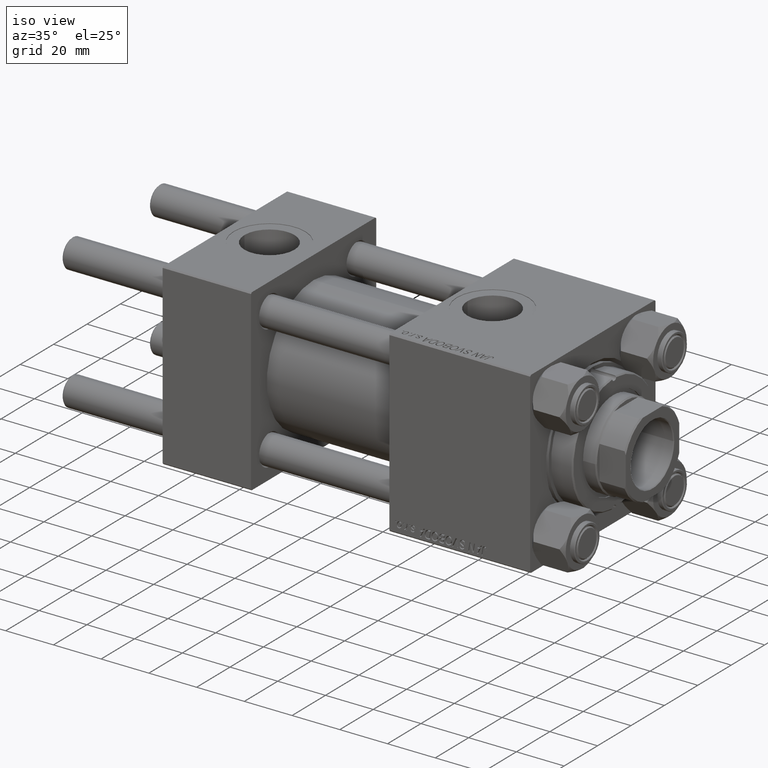
[diagram: clean part render]
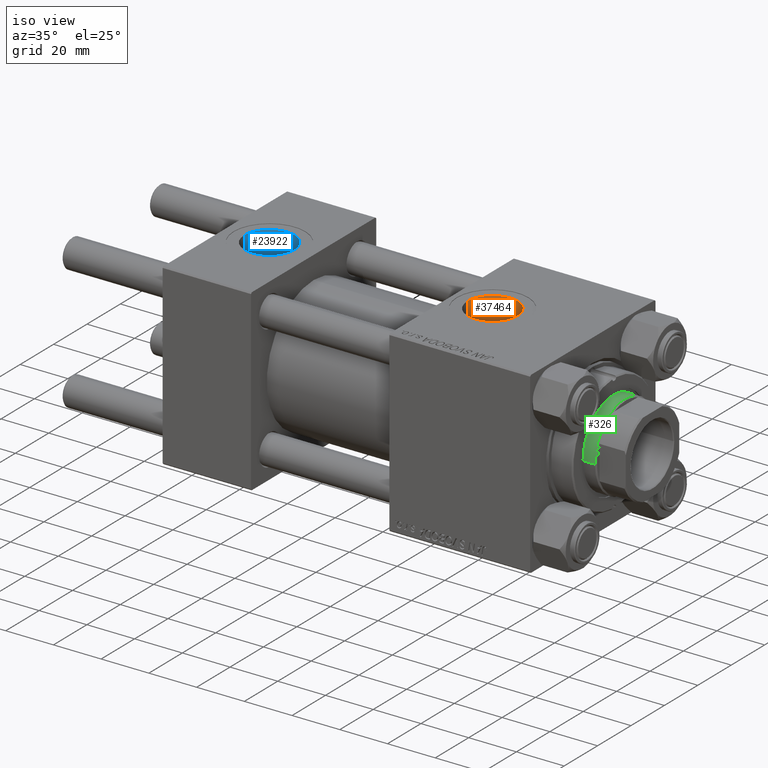
[diagram: same view with three faces highlighted in distinct colors, each labeled with its STEP entity id]
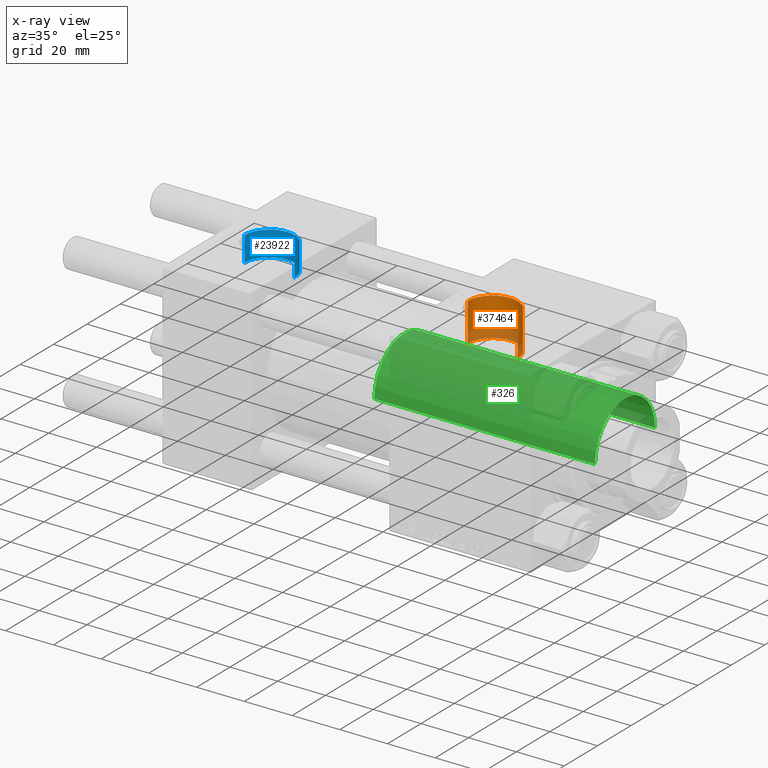
[diagram: x-ray of the same camera — body ghosted, the three highlighted faces saturated]
A machine part, iso view with three faces highlighted in distinct colors.
The next image is the same camera in x-ray (body ghosted, the three faces saturated) — at least one of them is partly hidden behind the body in this view.
Their STEP definitions:

[orange] entity #37464 — the highlighted cylindrical surface (edge-blend (fillet) strip) has radius 10.48 mm, axis along (0, 0, -1).
#133 = VECTOR ( 'NONE', #782, 1000.000000000000000 ) ;
#185 = VERTEX_POINT ( 'NONE', #36569 ) ;
#444 = FACE_OUTER_BOUND ( 'NONE', #37463, .T. ) ;
#698 = EDGE_CURVE ( 'NONE', #185, #50934, #20632, .T. ) ;
#782 = DIRECTION ( 'NONE',  ( 0.000000000000000000, 0.000000000000000000, -1.000000000000000000 ) ) ;
#967 = AXIS2_PLACEMENT_3D ( 'NONE', #4362, #27895, #32578 ) ;
#1673 = DIRECTION ( 'NONE',  ( -0.000000000000000000, -0.000000000000000000, -1.000000000000000000 ) ) ;
#2133 = ORIENTED_EDGE ( 'NONE', *, *, #698, .T. ) ;
#2871 = CARTESIAN_POINT ( 'NONE',  ( 112.0000000000000000, -6.938893903907226011E-15, 21.09999999999998010 ) ) ;
#4362 = CARTESIAN_POINT ( 'NONE',  ( 112.0000000000000000, -6.938893903907226011E-15, 60.29999999999998295 ) ) ;
#4559 = DIRECTION ( 'NONE',  ( 0.000000000000000000, 0.000000000000000000, -1.000000000000000000 ) ) ;
#4658 = AXIS2_PLACEMENT_3D ( 'NONE', #2871, #23493, #47025 ) ;
#5811 = ORIENTED_EDGE ( 'NONE', *, *, #43125, .F. ) ;
#7730 = CIRCLE ( 'NONE', #36931, 10.48000000000000398 ) ;
#12098 = VECTOR ( 'NONE', #4559, 1000.000000000000000 ) ;
#15550 = CARTESIAN_POINT ( 'NONE',  ( 101.5199999999999960, -6.938893903907226011E-15, 21.09999999999998010 ) ) ;
#15867 = CYLINDRICAL_SURFACE ( 'NONE', #967, 10.48000000000000398 ) ;
#16825 = CARTESIAN_POINT ( 'NONE',  ( 122.4800000000000040, -5.655464058400799734E-15, 60.29999999999998295 ) ) ;
#16845 = EDGE_CURVE ( 'NONE', #35791, #27568, #48197, .T. ) ;
#20632 = LINE ( 'NONE', #36573, #133 ) ;
#22828 = EDGE_CURVE ( 'NONE', #27568, #50934, #27202, .T. ) ;
#23493 = DIRECTION ( 'NONE',  ( 0.000000000000000000, 0.000000000000000000, 1.000000000000000000 ) ) ;
#27202 = CIRCLE ( 'NONE', #4658, 10.48000000000000398 ) ;
#27463 = ORIENTED_EDGE ( 'NONE', *, *, #22828, .F. ) ;
#27568 = VERTEX_POINT ( 'NONE', #28743 ) ;
#27895 = DIRECTION ( 'NONE',  ( 0.000000000000000000, 0.000000000000000000, -1.000000000000000000 ) ) ;
#28353 = DIRECTION ( 'NONE',  ( 1.000000000000000000, 0.000000000000000000, 0.000000000000000000 ) ) ;
#28743 = CARTESIAN_POINT ( 'NONE',  ( 122.4800000000000040, -5.655464058400800522E-15, 21.09999999999998010 ) ) ;
#30770 = ORIENTED_EDGE ( 'NONE', *, *, #16845, .F. ) ;
#32578 = DIRECTION ( 'NONE',  ( -1.000000000000000000, 0.000000000000000000, 0.000000000000000000 ) ) ;
#33786 = CARTESIAN_POINT ( 'NONE',  ( 122.4800000000000040, -5.655464058400800522E-15, 37.29999999999998295 ) ) ;
#35791 = VERTEX_POINT ( 'NONE', #33786 ) ;
#36569 = CARTESIAN_POINT ( 'NONE',  ( 101.5199999999999960, -6.938893903907226011E-15, 37.29999999999998295 ) ) ;
#36573 = CARTESIAN_POINT ( 'NONE',  ( 101.5199999999999960, -6.938893903907226011E-15, 60.29999999999998295 ) ) ;
#36931 = AXIS2_PLACEMENT_3D ( 'NONE', #44260, #1673, #28353 ) ;
#37463 = EDGE_LOOP ( 'NONE', ( #30770, #5811, #2133, #27463 ) ) ;
#37464 = ADVANCED_FACE ( 'NONE', ( #444 ), #15867, .F. ) ;
#43125 = EDGE_CURVE ( 'NONE', #185, #35791, #7730, .T. ) ;
#44260 = CARTESIAN_POINT ( 'NONE',  ( 112.0000000000000000, -6.938893903907226011E-15, 37.29999999999998295 ) ) ;
#47025 = DIRECTION ( 'NONE',  ( 1.000000000000000000, 0.000000000000000000, 0.000000000000000000 ) ) ;
#48197 = LINE ( 'NONE', #16825, #12098 ) ;
#50934 = VERTEX_POINT ( 'NONE', #15550 ) ;

[blue] entity #23922 — the highlighted cylindrical surface (edge-blend (fillet) strip) has radius 10.48 mm, axis along (0, 0, 1).
#896 = CARTESIAN_POINT ( 'NONE',  ( 28.98000000000000043, -5.204170427930421283E-15, 26.69999999999999929 ) ) ;
#3085 = ORIENTED_EDGE ( 'NONE', *, *, #5052, .T. ) ;
#4188 = EDGE_CURVE ( 'NONE', #22576, #30666, #33790, .T. ) ;
#5052 = EDGE_CURVE ( 'NONE', #30666, #51368, #19338, .T. ) ;
#6418 = DIRECTION ( 'NONE',  ( 1.000000000000000000, 0.000000000000000000, 0.000000000000000000 ) ) ;
#9300 = CARTESIAN_POINT ( 'NONE',  ( 18.50000000000000000, -5.204170427930421283E-15, 26.69999999999999929 ) ) ;
#10350 = CARTESIAN_POINT ( 'NONE',  ( 8.019999999999999574, -3.920740582423995006E-15, 26.69999999999999929 ) ) ;
#11245 = LINE ( 'NONE', #27190, #27581 ) ;
#13270 = ORIENTED_EDGE ( 'NONE', *, *, #18467, .F. ) ;
#15405 = DIRECTION ( 'NONE',  ( 1.000000000000000000, 0.000000000000000000, 0.000000000000000000 ) ) ;
#18182 = CYLINDRICAL_SURFACE ( 'NONE', #18876, 10.48000000000000043 ) ;
#18467 = EDGE_CURVE ( 'NONE', #22576, #42100, #28031, .T. ) ;
#18876 = AXIS2_PLACEMENT_3D ( 'NONE', #9300, #37002, #41438 ) ;
#19338 = CIRCLE ( 'NONE', #26015, 10.48000000000000043 ) ;
#19617 = ORIENTED_EDGE ( 'NONE', *, *, #37056, .F. ) ;
#20262 = VECTOR ( 'NONE', #41362, 1000.000000000000000 ) ;
#21056 = FACE_OUTER_BOUND ( 'NONE', #50603, .T. ) ;
#22576 = VERTEX_POINT ( 'NONE', #896 ) ;
#22985 = AXIS2_PLACEMENT_3D ( 'NONE', #51182, #27422, #15405 ) ;
#23922 = ADVANCED_FACE ( 'NONE', ( #21056 ), #18182, .F. ) ;
#26015 = AXIS2_PLACEMENT_3D ( 'NONE', #30458, #27304, #6418 ) ;
#26459 = CARTESIAN_POINT ( 'NONE',  ( 28.98000000000000043, -5.204170427930421283E-15, 26.69999999999999929 ) ) ;
#27190 = CARTESIAN_POINT ( 'NONE',  ( 8.019999999999999574, -3.920740582423995006E-15, 26.69999999999999929 ) ) ;
#27304 = DIRECTION ( 'NONE',  ( 0.000000000000000000, 0.000000000000000000, 1.000000000000000000 ) ) ;
#27422 = DIRECTION ( 'NONE',  ( 0.000000000000000000, 0.000000000000000000, 1.000000000000000000 ) ) ;
#27581 = VECTOR ( 'NONE', #43111, 1000.000000000000000 ) ;
#28031 = CIRCLE ( 'NONE', #22985, 10.48000000000000043 ) ;
#30458 = CARTESIAN_POINT ( 'NONE',  ( 18.50000000000000000, -5.204170427930421283E-15, 37.29999999999999716 ) ) ;
#30666 = VERTEX_POINT ( 'NONE', #51309 ) ;
#33790 = LINE ( 'NONE', #26459, #20262 ) ;
#37002 = DIRECTION ( 'NONE',  ( -0.000000000000000000, -0.000000000000000000, 1.000000000000000000 ) ) ;
#37056 = EDGE_CURVE ( 'NONE', #42100, #51368, #11245, .T. ) ;
#41362 = DIRECTION ( 'NONE',  ( -0.000000000000000000, -0.000000000000000000, 1.000000000000000000 ) ) ;
#41438 = DIRECTION ( 'NONE',  ( 1.000000000000000000, 0.000000000000000000, 0.000000000000000000 ) ) ;
#42100 = VERTEX_POINT ( 'NONE', #10350 ) ;
#43111 = DIRECTION ( 'NONE',  ( -0.000000000000000000, -0.000000000000000000, 1.000000000000000000 ) ) ;
#47173 = ORIENTED_EDGE ( 'NONE', *, *, #4188, .T. ) ;
#49153 = CARTESIAN_POINT ( 'NONE',  ( 8.019999999999999574, -3.920740582423995006E-15, 37.29999999999999716 ) ) ;
#50603 = EDGE_LOOP ( 'NONE', ( #19617, #13270, #47173, #3085 ) ) ;
#51182 = CARTESIAN_POINT ( 'NONE',  ( 18.50000000000000000, -5.204170427930421283E-15, 26.69999999999999929 ) ) ;
#51309 = CARTESIAN_POINT ( 'NONE',  ( 28.98000000000000043, -5.204170427930421283E-15, 37.29999999999999716 ) ) ;
#51368 = VERTEX_POINT ( 'NONE', #49153 ) ;

[green] entity #326 — the highlighted cylindrical surface (partial cylindrical patch) has radius 18 mm, axis along (-1, 0, 0).
#326 = ADVANCED_FACE ( 'NONE', ( #42303 ), #6516, .T. ) ;
#3090 = LINE ( 'NONE', #7007, #33055 ) ;
#6516 = CYLINDRICAL_SURFACE ( 'NONE', #33527, 18.00000000000000000 ) ;
#7007 = CARTESIAN_POINT ( 'NONE',  ( 18.00000000000000000, 2.204364238465235033E-15, 131.0000000000000000 ) ) ;
#10708 = CIRCLE ( 'NONE', #14024, 18.00000000000000000 ) ;
#12003 = DIRECTION ( 'NONE',  ( 1.000000000000000000, 0.000000000000000000, 0.000000000000000000 ) ) ;
#12721 = VECTOR ( 'NONE', #44321, 1000.000000000000000 ) ;
#13452 = ORIENTED_EDGE ( 'NONE', *, *, #15372, .T. ) ;
#14024 = AXIS2_PLACEMENT_3D ( 'NONE', #42484, #22628, #30739 ) ;
#15372 = EDGE_CURVE ( 'NONE', #47143, #23638, #39577, .T. ) ;
#19020 = DIRECTION ( 'NONE',  ( -0.000000000000000000, -0.000000000000000000, -1.000000000000000000 ) ) ;
#20675 = CARTESIAN_POINT ( 'NONE',  ( 18.00000000000000000, 2.204364238465235033E-15, 130.5000000000000568 ) ) ;
#22071 = VERTEX_POINT ( 'NONE', #33748 ) ;
#22254 = LINE ( 'NONE', #47252, #12721 ) ;
#22475 = EDGE_CURVE ( 'NONE', #47143, #29852, #3090, .T. ) ;
#22628 = DIRECTION ( 'NONE',  ( 0.000000000000000000, 0.000000000000000000, 1.000000000000000000 ) ) ;
#23638 = VERTEX_POINT ( 'NONE', #45222 ) ;
#26804 = EDGE_LOOP ( 'NONE', ( #32467, #13452, #27775, #33752 ) ) ;
#27775 = ORIENTED_EDGE ( 'NONE', *, *, #42815, .T. ) ;
#28013 = EDGE_CURVE ( 'NONE', #22071, #29852, #10708, .T. ) ;
#29852 = VERTEX_POINT ( 'NONE', #34547 ) ;
#30739 = DIRECTION ( 'NONE',  ( 1.000000000000000000, 0.000000000000000000, 0.000000000000000000 ) ) ;
#32467 = ORIENTED_EDGE ( 'NONE', *, *, #22475, .F. ) ;
#33055 = VECTOR ( 'NONE', #19020, 1000.000000000000000 ) ;
#33527 = AXIS2_PLACEMENT_3D ( 'NONE', #33958, #38382, #38128 ) ;
#33748 = CARTESIAN_POINT ( 'NONE',  ( -18.00000000000000000, 0.000000000000000000, 38.00000000000000000 ) ) ;
#33752 = ORIENTED_EDGE ( 'NONE', *, *, #28013, .T. ) ;
#33958 = CARTESIAN_POINT ( 'NONE',  ( 0.000000000000000000, 0.000000000000000000, 131.0000000000000000 ) ) ;
#34547 = CARTESIAN_POINT ( 'NONE',  ( 18.00000000000000000, 2.204364238465235033E-15, 38.00000000000000000 ) ) ;
#35530 = DIRECTION ( 'NONE',  ( 0.000000000000000000, 0.000000000000000000, -1.000000000000000000 ) ) ;
#38128 = DIRECTION ( 'NONE',  ( -1.000000000000000000, 0.000000000000000000, 0.000000000000000000 ) ) ;
#38382 = DIRECTION ( 'NONE',  ( -0.000000000000000000, -0.000000000000000000, -1.000000000000000000 ) ) ;
#39440 = CARTESIAN_POINT ( 'NONE',  ( 0.000000000000000000, 0.000000000000000000, 130.5000000000000568 ) ) ;
#39577 = CIRCLE ( 'NONE', #46259, 18.00000000000000000 ) ;
#42303 = FACE_OUTER_BOUND ( 'NONE', #26804, .T. ) ;
#42484 = CARTESIAN_POINT ( 'NONE',  ( 0.000000000000000000, 0.000000000000000000, 38.00000000000000000 ) ) ;
#42815 = EDGE_CURVE ( 'NONE', #23638, #22071, #22254, .T. ) ;
#44321 = DIRECTION ( 'NONE',  ( -0.000000000000000000, -0.000000000000000000, -1.000000000000000000 ) ) ;
#45222 = CARTESIAN_POINT ( 'NONE',  ( -18.00000000000000000, 0.000000000000000000, 130.5000000000000568 ) ) ;
#46259 = AXIS2_PLACEMENT_3D ( 'NONE', #39440, #35530, #12003 ) ;
#47143 = VERTEX_POINT ( 'NONE', #20675 ) ;
#47252 = CARTESIAN_POINT ( 'NONE',  ( -18.00000000000000000, 0.000000000000000000, 131.0000000000000000 ) ) ;